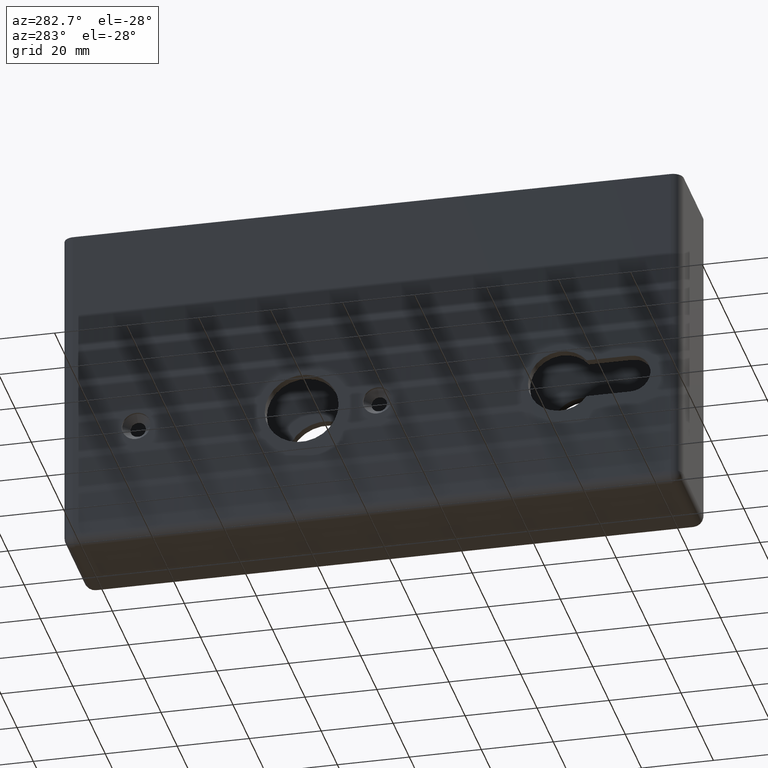
[diagram: clean part render]
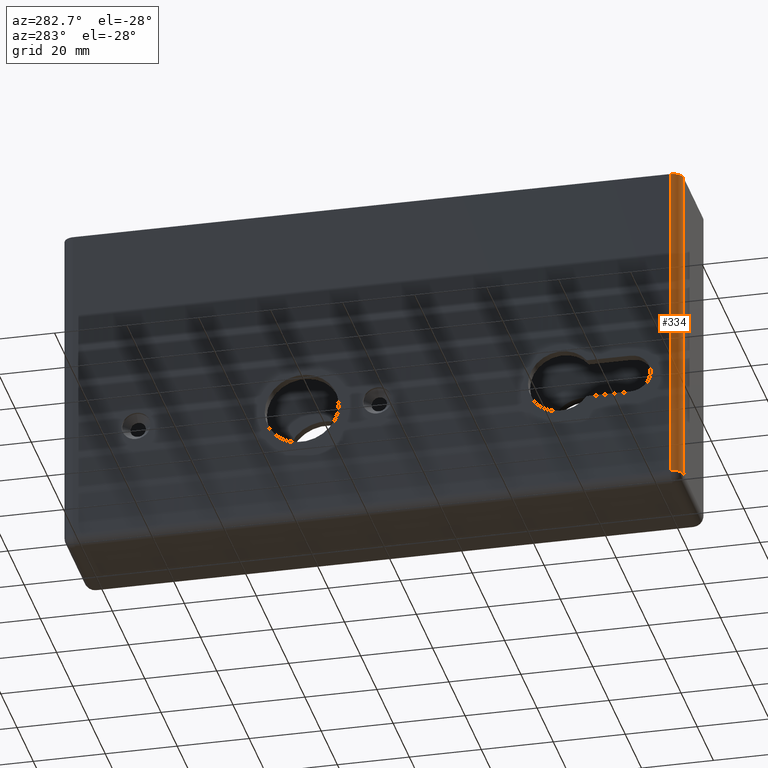
[diagram: same view with one face highlighted and labeled with its STEP entity id]
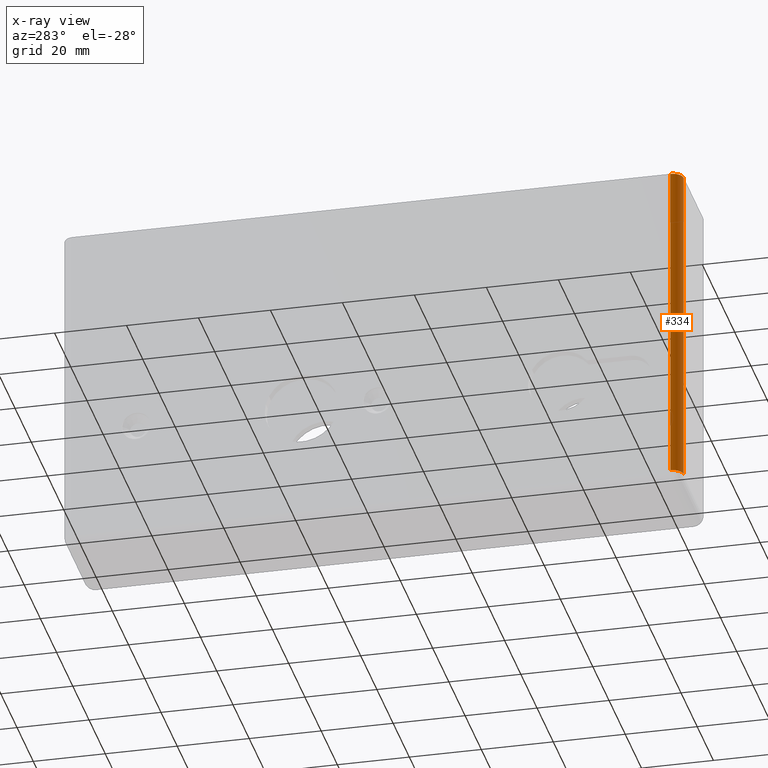
[diagram: x-ray of the same camera — body ghosted, the highlighted face saturated]
A machine part, auxiliary view. The second image highlights one B-rep face of the part: STEP entity #334.
The next image is the same camera in x-ray: the body ghosted, the highlighted face saturated — about 0% of this face is hidden behind the body in this view.
In plain terms, the highlighted cylindrical surface (edge-blend (fillet) strip) has radius 3 mm, axis along (-0, 0, -1).
Its self-contained STEP definition (entity closure, byte-faithful):
#81 = DIRECTION ( 'NONE',  ( 0.000000000000000000, -0.000000000000000000, -1.000000000000000000 ) ) ;
#334 = ADVANCED_FACE ( 'NONE', ( #12762 ), #4244, .T. ) ;
#509 = ORIENTED_EDGE ( 'NONE', *, *, #9551, .F. ) ;
#892 = VERTEX_POINT ( 'NONE', #12207 ) ;
#2289 = CARTESIAN_POINT ( 'NONE',  ( -11.99999999999997868, -82.99999999999998579, 47.00000000000000000 ) ) ;
#2603 = VERTEX_POINT ( 'NONE', #8457 ) ;
#2874 = DIRECTION ( 'NONE',  ( -0.000000000000000000, 0.000000000000000000, -1.000000000000000000 ) ) ;
#3646 = CARTESIAN_POINT ( 'NONE',  ( -14.99999999999998046, -82.99999999999998579, 47.00000000000000000 ) ) ;
#3841 = AXIS2_PLACEMENT_3D ( 'NONE', #2289, #4296, #11353 ) ;
#4117 = AXIS2_PLACEMENT_3D ( 'NONE', #12949, #2874, #6916 ) ;
#4244 = CYLINDRICAL_SURFACE ( 'NONE', #4117, 2.999999999999999112 ) ;
#4296 = DIRECTION ( 'NONE',  ( 0.000000000000000000, 0.000000000000000000, 1.000000000000000000 ) ) ;
#4739 = DIRECTION ( 'NONE',  ( 0.000000000000000000, -0.000000000000000000, 1.000000000000000000 ) ) ;
#5805 = ORIENTED_EDGE ( 'NONE', *, *, #7949, .F. ) ;
#5867 = EDGE_LOOP ( 'NONE', ( #5805, #509, #6947, #12837 ) ) ;
#5943 = LINE ( 'NONE', #7410, #6885 ) ;
#6385 = CIRCLE ( 'NONE', #8025, 2.999999999999999112 ) ;
#6591 = VERTEX_POINT ( 'NONE', #13017 ) ;
#6885 = VECTOR ( 'NONE', #9465, 1000.000000000000000 ) ;
#6916 = DIRECTION ( 'NONE',  ( -1.000000000000000000, 0.000000000000000000, 0.000000000000000000 ) ) ;
#6947 = ORIENTED_EDGE ( 'NONE', *, *, #10601, .F. ) ;
#7410 = CARTESIAN_POINT ( 'NONE',  ( -11.99999999999997868, -86.00000000000000000, 47.00000000000000000 ) ) ;
#7949 = EDGE_CURVE ( 'NONE', #6591, #8380, #10761, .T. ) ;
#8025 = AXIS2_PLACEMENT_3D ( 'NONE', #12105, #81, #8113 ) ;
#8036 = EDGE_CURVE ( 'NONE', #8380, #892, #5943, .T. ) ;
#8113 = DIRECTION ( 'NONE',  ( -1.000000000000000000, 0.000000000000000000, 0.000000000000000000 ) ) ;
#8380 = VERTEX_POINT ( 'NONE', #11654 ) ;
#8457 = CARTESIAN_POINT ( 'NONE',  ( -14.99999999999998046, -82.99999999999998579, -44.00000000000000000 ) ) ;
#8933 = VECTOR ( 'NONE', #4739, 1000.000000000000000 ) ;
#9465 = DIRECTION ( 'NONE',  ( -0.000000000000000000, 0.000000000000000000, -1.000000000000000000 ) ) ;
#9551 = EDGE_CURVE ( 'NONE', #2603, #6591, #12532, .T. ) ;
#10601 = EDGE_CURVE ( 'NONE', #892, #2603, #6385, .T. ) ;
#10761 = CIRCLE ( 'NONE', #3841, 2.999999999999999112 ) ;
#11353 = DIRECTION ( 'NONE',  ( 1.000000000000000000, 0.000000000000000000, 0.000000000000000000 ) ) ;
#11654 = CARTESIAN_POINT ( 'NONE',  ( -11.99999999999997868, -86.00000000000000000, 47.00000000000000000 ) ) ;
#12105 = CARTESIAN_POINT ( 'NONE',  ( -11.99999999999997868, -82.99999999999998579, -44.00000000000000000 ) ) ;
#12207 = CARTESIAN_POINT ( 'NONE',  ( -11.99999999999997868, -86.00000000000000000, -44.00000000000000000 ) ) ;
#12532 = LINE ( 'NONE', #3646, #8933 ) ;
#12762 = FACE_OUTER_BOUND ( 'NONE', #5867, .T. ) ;
#12837 = ORIENTED_EDGE ( 'NONE', *, *, #8036, .F. ) ;
#12949 = CARTESIAN_POINT ( 'NONE',  ( -11.99999999999997868, -82.99999999999998579, 47.00000000000000000 ) ) ;
#13017 = CARTESIAN_POINT ( 'NONE',  ( -14.99999999999998046, -82.99999999999998579, 47.00000000000000000 ) ) ;